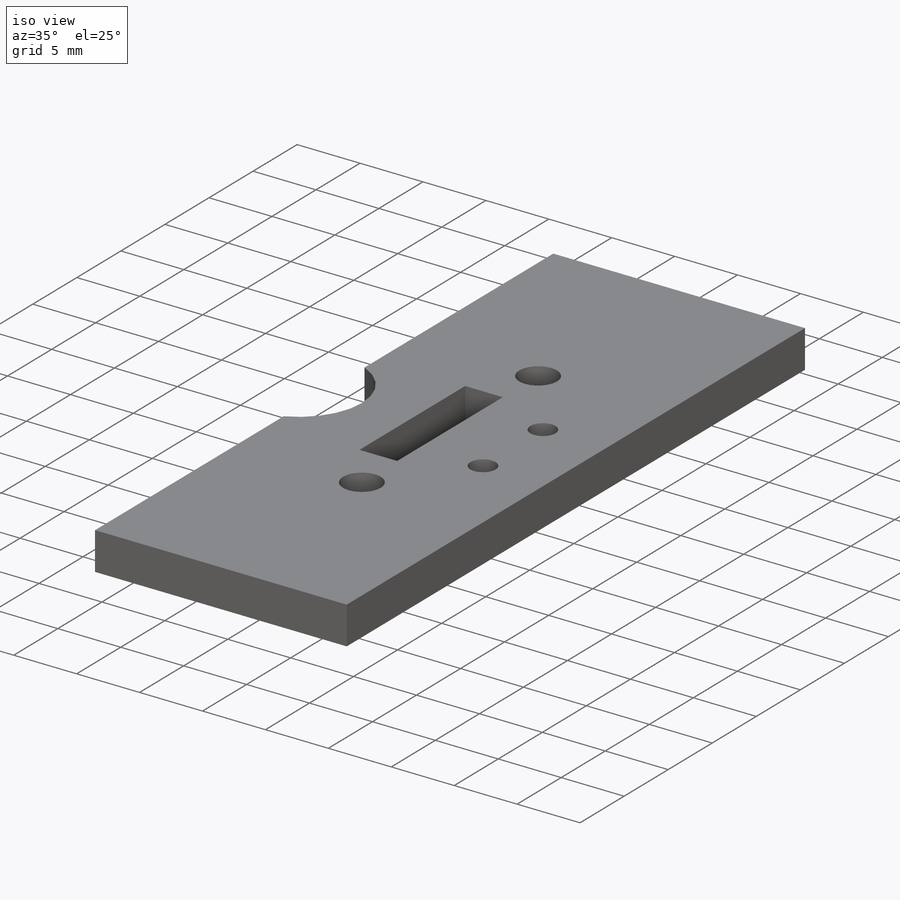
[diagram: iso view]
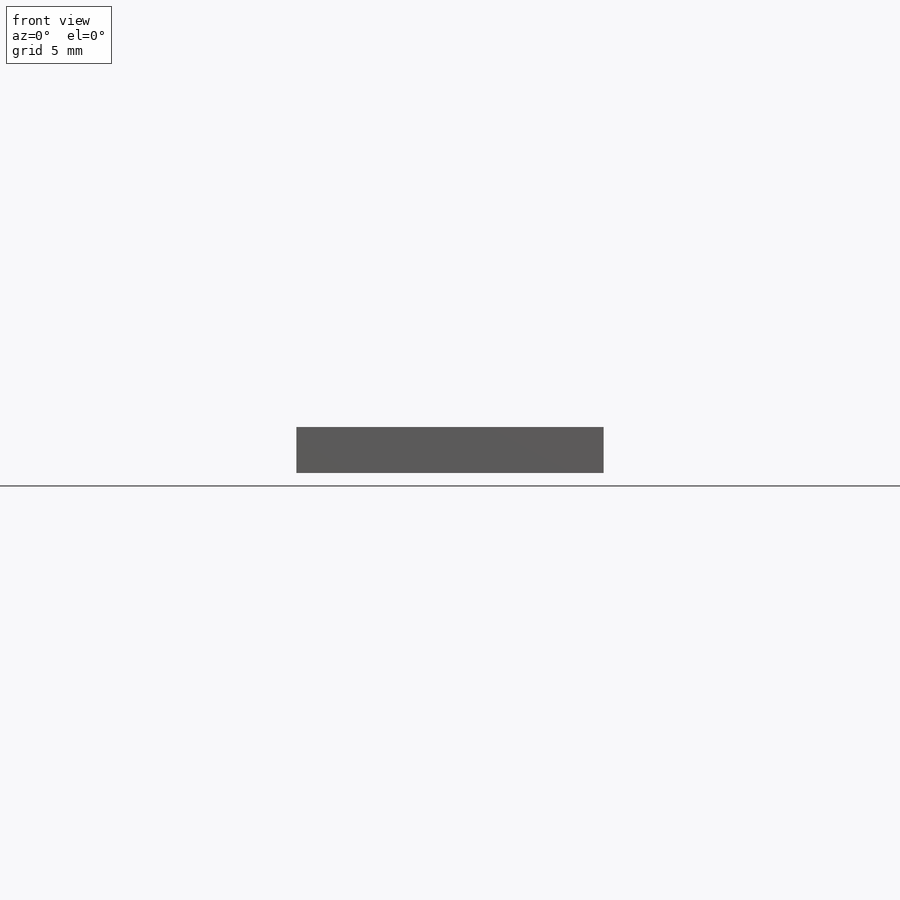
[diagram: front view]
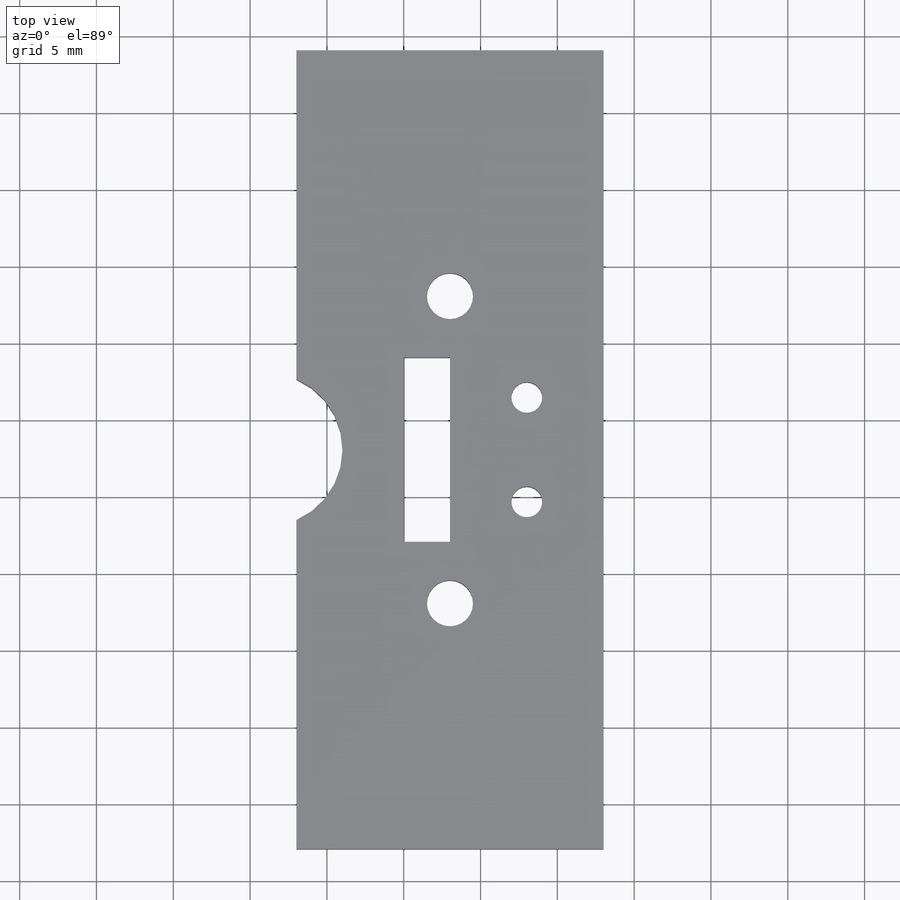
[diagram: top view]
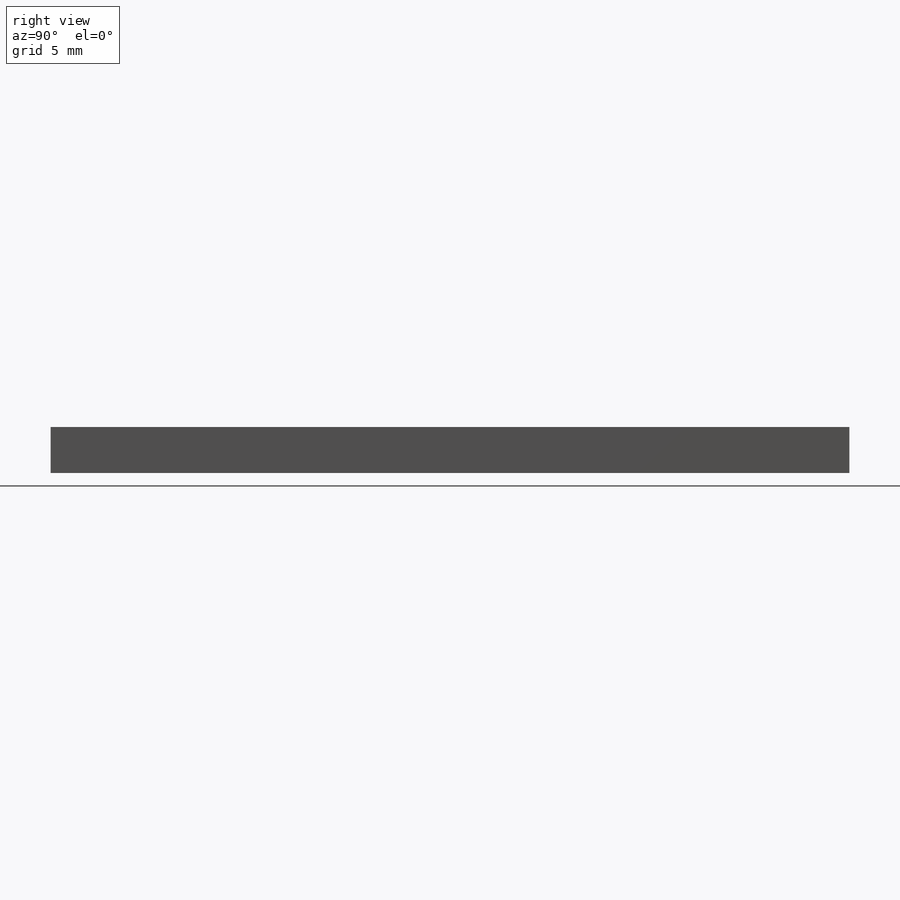
[diagram: right view]
SOLIDWORKS PART (.sldprt)
format: sldprt  version: not decoded by parser v0  size: 795,648 bytes
history: native  units: mm
features: sketch x5, cut_extrude x4, plane x3, material x1, extrude x1 (+10 scaffold rows collapsed)
feature tree (24):
  scaffold x10  (default folders/planes/origin — collapsed)
  material  "Balsa"
  plane  "Plan de face"
  plane  "Plan de dessus"
  plane  "Plan de droite"
  sketch  "Esquisse1"  dims[D1=52.0mm D2=20.0mm]
  extrude  "Boss.-Extru.1"  Depth=3mm
  sketch  "Esquisse2"  dims[c1.D1=3.0mm c1.D2=3.0mm c1.D3=3.0mm c1.D4=3.0mm c1.D5=3.0mm c2.D3=10.0mm c2.D4=10.0mm c2.D5=5.0mm c2.D6=5.0mm c3.D5=20.0mm c3.D6=16.0mm c3.D7=16.0mm]
  cut_extrude  "Enlèv. mat.-Extru.1"  Depth=3mm
  sketch  "Esquisse3"  dims[c1.D1=10.0mm c1.D2=2.0mm c1.D3=26.0mm c2.D2=2.0mm c2.D4=26.0mm]
  cut_extrude  "Enlèv. mat.-Extru.2"  Depth=3mm
  sketch  "Esquisse4"  dims[D1=10.0mm D2=3.0mm D3=12.0mm D4=1.415mm D5=~1.419849mm]
  cut_extrude  "Enlèv. mat.-Extru.3"  Depth=10mm
  sketch  "Esquisse5"  dims[c1.D1=2.0mm c1.D2=2.0mm c1.D3=6.5mm c1.D4=12.8mm c1.D5=1.5mm c1.D6=1.5mm c1.D7=3.0mm c1.D8=3.0mm c1.D9=1.4mm c1.D10=1.8mm c2.D5=1.5mm c2.D6=1.5mm]
  cut_extrude  "Enlèv. mat.-Extru.5"  Depth=10mm
decode coverage: 10 of 10 modeling features carry decoded parameters
note: ~ marks probable driven/reference dimensions
note: suppression state not decoded; provenance and decode notes live in map.json
